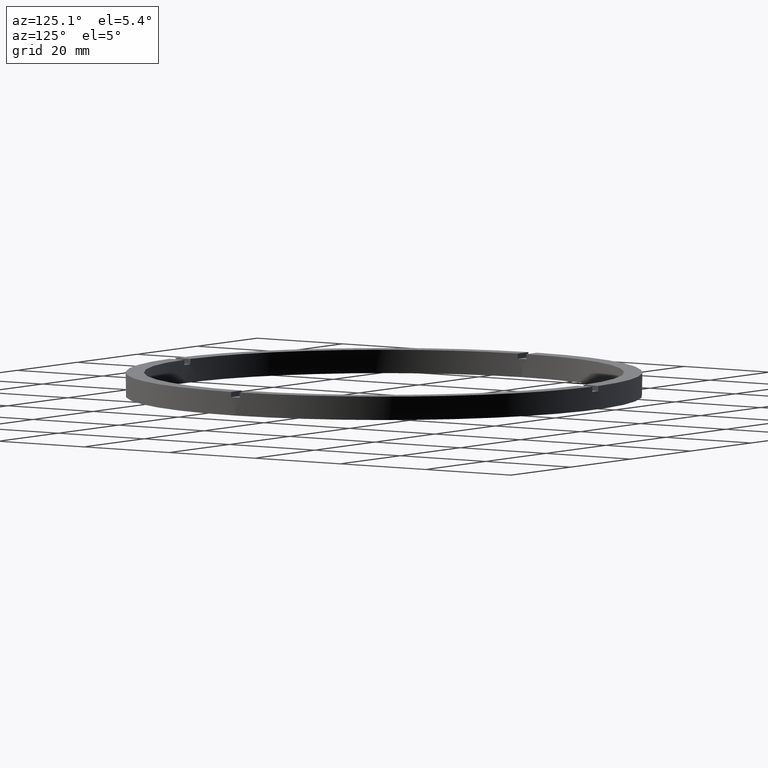
[diagram: clean part render]
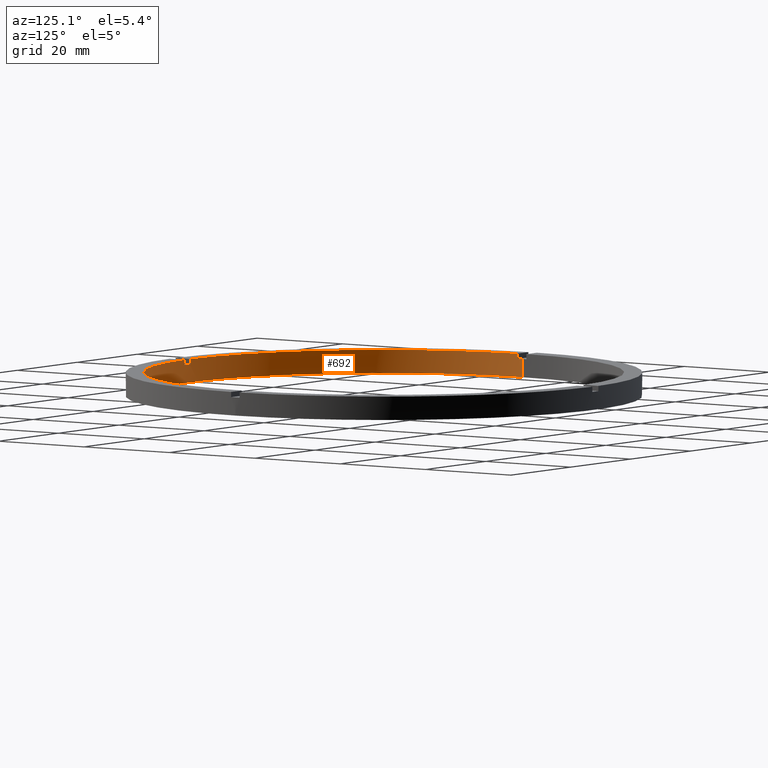
[diagram: same view with one face highlighted and labeled with its STEP entity id]
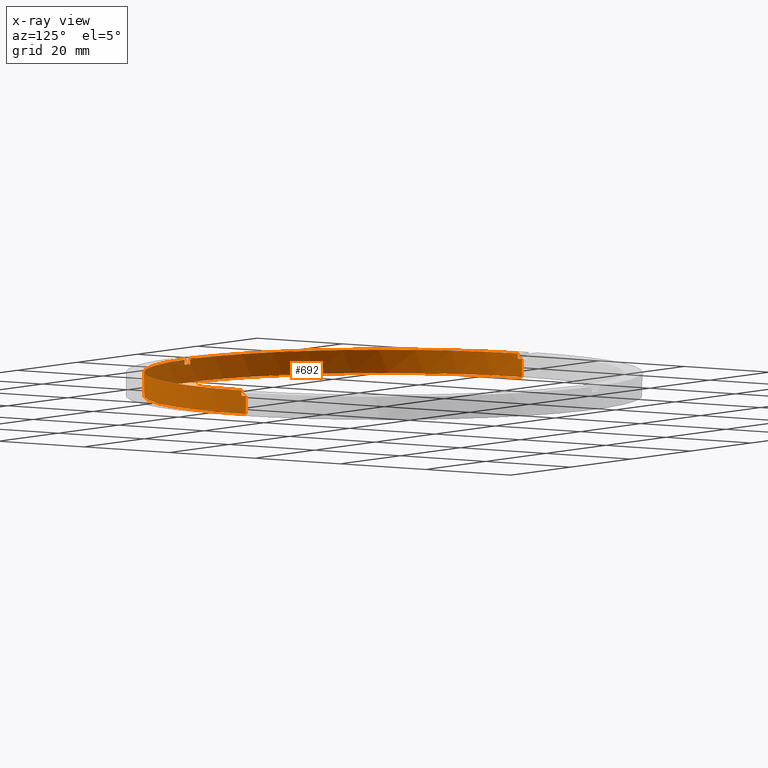
[diagram: x-ray of the same camera — body ghosted, the highlighted face saturated]
A machine part, auxiliary view. The second image highlights one B-rep face of the part: STEP entity #692.
The next image is the same camera in x-ray: the body ghosted, the highlighted face saturated — about 0% of this face is hidden behind the body in this view.
In plain terms, the highlighted cylindrical surface (partial cylindrical patch) has radius 46 mm, axis along (-0, -0, -1).
Its self-contained STEP definition (entity closure, byte-faithful):
#1 = EDGE_CURVE ( 'NONE', #614, #634, #262, .T. ) ;
#6 = ORIENTED_EDGE ( 'NONE', *, *, #430, .T. ) ;
#7 = VERTEX_POINT ( 'NONE', #369 ) ;
#19 = CARTESIAN_POINT ( 'NONE',  ( 46.00000000000000000, 5.633375276077824704E-15, 0.000000000000000000 ) ) ;
#56 = CARTESIAN_POINT ( 'NONE',  ( 45.98912915026767223, -1.000000000000155431, 4.500000000000000000 ) ) ;
#59 = DIRECTION ( 'NONE',  ( 1.000000000000000000, 0.000000000000000000, 0.000000000000000000 ) ) ;
#61 = DIRECTION ( 'NONE',  ( 0.000000000000000000, 0.000000000000000000, 1.000000000000000000 ) ) ;
#63 = CARTESIAN_POINT ( 'NONE',  ( -45.98912915026767223, -1.000000000000030420, 3.499999999999999556 ) ) ;
#71 = DIRECTION ( 'NONE',  ( -1.000000000000000000, 0.000000000000000000, 0.000000000000000000 ) ) ;
#73 = CIRCLE ( 'NONE', #776, 46.00000000000000000 ) ;
#74 = CARTESIAN_POINT ( 'NONE',  ( -46.00000000000000000, 0.000000000000000000, 3.499999999999999556 ) ) ;
#85 = CARTESIAN_POINT ( 'NONE',  ( 0.000000000000000000, 0.000000000000000000, 3.499999999999999556 ) ) ;
#97 = DIRECTION ( 'NONE',  ( 1.000000000000000000, 0.000000000000000000, 0.000000000000000000 ) ) ;
#98 = EDGE_CURVE ( 'NONE', #782, #364, #205, .T. ) ;
#99 = EDGE_CURVE ( 'NONE', #614, #633, #457, .T. ) ;
#113 = DIRECTION ( 'NONE',  ( 1.000000000000000000, 0.000000000000000000, 0.000000000000000000 ) ) ;
#116 = EDGE_CURVE ( 'NONE', #661, #123, #186, .T. ) ;
#123 = VERTEX_POINT ( 'NONE', #626 ) ;
#128 = ORIENTED_EDGE ( 'NONE', *, *, #732, .T. ) ;
#129 = DIRECTION ( 'NONE',  ( 0.000000000000000000, 0.000000000000000000, 1.000000000000000000 ) ) ;
#135 = DIRECTION ( 'NONE',  ( 0.000000000000000000, 0.000000000000000000, 1.000000000000000000 ) ) ;
#138 = CARTESIAN_POINT ( 'NONE',  ( 45.98912915026767223, -1.000000000000155431, 4.500000000000000000 ) ) ;
#151 = EDGE_CURVE ( 'NONE', #7, #631, #453, .T. ) ;
#158 = CARTESIAN_POINT ( 'NONE',  ( 0.000000000000000000, 0.000000000000000000, 4.500000000000000000 ) ) ;
#162 = EDGE_CURVE ( 'NONE', #7, #634, #201, .T. ) ;
#169 = VERTEX_POINT ( 'NONE', #19 ) ;
#170 = ORIENTED_EDGE ( 'NONE', *, *, #474, .T. ) ;
#183 = LINE ( 'NONE', #713, #458 ) ;
#186 = LINE ( 'NONE', #380, #717 ) ;
#195 = DIRECTION ( 'NONE',  ( 1.000000000000000000, 0.000000000000000000, 0.000000000000000000 ) ) ;
#201 = LINE ( 'NONE', #531, #720 ) ;
#203 = VECTOR ( 'NONE', #135, 1000.000000000000000 ) ;
#205 = LINE ( 'NONE', #56, #203 ) ;
#216 = CARTESIAN_POINT ( 'NONE',  ( 46.00000000000000000, 5.633375276077824704E-15, 3.499999999999999556 ) ) ;
#254 = ORIENTED_EDGE ( 'NONE', *, *, #116, .F. ) ;
#262 = CIRCLE ( 'NONE', #749, 46.00000000000000000 ) ;
#282 = AXIS2_PLACEMENT_3D ( 'NONE', #285, #129, #195 ) ;
#285 = CARTESIAN_POINT ( 'NONE',  ( 0.000000000000000000, 0.000000000000000000, 0.000000000000000000 ) ) ;
#290 = ORIENTED_EDGE ( 'NONE', *, *, #151, .T. ) ;
#300 = ORIENTED_EDGE ( 'NONE', *, *, #99, .F. ) ;
#326 = DIRECTION ( 'NONE',  ( 1.000000000000000000, 0.000000000000000000, 0.000000000000000000 ) ) ;
#338 = CARTESIAN_POINT ( 'NONE',  ( 0.9999999999998425704, -45.98912915026767934, 4.500000000000000000 ) ) ;
#358 = CARTESIAN_POINT ( 'NONE',  ( -1.000000000000157430, -45.98912915026767223, 3.499999999999999556 ) ) ;
#361 = CARTESIAN_POINT ( 'NONE',  ( -1.000000000000157430, -45.98912915026767223, 4.500000000000000000 ) ) ;
#364 = VERTEX_POINT ( 'NONE', #138 ) ;
#369 = CARTESIAN_POINT ( 'NONE',  ( -45.98912915026767223, -1.000000000000030420, 4.500000000000000000 ) ) ;
#372 = ORIENTED_EDGE ( 'NONE', *, *, #764, .F. ) ;
#380 = CARTESIAN_POINT ( 'NONE',  ( 0.9999999999998425704, -45.98912915026767934, 4.500000000000000000 ) ) ;
#389 = CARTESIAN_POINT ( 'NONE',  ( -46.00000000000000000, 0.000000000000000000, 4.500000000000000000 ) ) ;
#392 = CARTESIAN_POINT ( 'NONE',  ( 0.000000000000000000, 0.000000000000000000, 4.500000000000000000 ) ) ;
#393 = CARTESIAN_POINT ( 'NONE',  ( 0.000000000000000000, 0.000000000000000000, 3.499999999999999556 ) ) ;
#417 = ORIENTED_EDGE ( 'NONE', *, *, #676, .T. ) ;
#421 = ORIENTED_EDGE ( 'NONE', *, *, #98, .F. ) ;
#430 = EDGE_CURVE ( 'NONE', #638, #169, #183, .T. ) ;
#434 = CIRCLE ( 'NONE', #282, 46.00000000000000000 ) ;
#453 = CIRCLE ( 'NONE', #715, 46.00000000000000000 ) ;
#455 = DIRECTION ( 'NONE',  ( -0.000000000000000000, -0.000000000000000000, -1.000000000000000000 ) ) ;
#457 = LINE ( 'NONE', #389, #728 ) ;
#458 = VECTOR ( 'NONE', #688, 1000.000000000000000 ) ;
#467 = DIRECTION ( 'NONE',  ( 0.000000000000000000, 0.000000000000000000, 1.000000000000000000 ) ) ;
#474 = EDGE_CURVE ( 'NONE', #661, #364, #716, .T. ) ;
#477 = ORIENTED_EDGE ( 'NONE', *, *, #1, .T. ) ;
#483 = CARTESIAN_POINT ( 'NONE',  ( 45.98912915026767223, -1.000000000000155431, 3.499999999999999556 ) ) ;
#487 = DIRECTION ( 'NONE',  ( -0.000000000000000000, 0.000000000000000000, 1.000000000000000000 ) ) ;
#521 = DIRECTION ( 'NONE',  ( -0.000000000000000000, -0.000000000000000000, -1.000000000000000000 ) ) ;
#527 = ORIENTED_EDGE ( 'NONE', *, *, #162, .F. ) ;
#531 = CARTESIAN_POINT ( 'NONE',  ( -45.98912915026767223, -1.000000000000030420, 4.500000000000000000 ) ) ;
#543 = VERTEX_POINT ( 'NONE', #358 ) ;
#551 = AXIS2_PLACEMENT_3D ( 'NONE', #392, #768, #71 ) ;
#556 = DIRECTION ( 'NONE',  ( 0.000000000000000000, 0.000000000000000000, 1.000000000000000000 ) ) ;
#564 = LINE ( 'NONE', #361, #565 ) ;
#565 = VECTOR ( 'NONE', #556, 1000.000000000000000 ) ;
#568 = CYLINDRICAL_SURFACE ( 'NONE', #551, 46.00000000000000000 ) ;
#580 = DIRECTION ( 'NONE',  ( 0.000000000000000000, 0.000000000000000000, 1.000000000000000000 ) ) ;
#585 = EDGE_CURVE ( 'NONE', #633, #169, #434, .T. ) ;
#587 = AXIS2_PLACEMENT_3D ( 'NONE', #600, #735, #592 ) ;
#592 = DIRECTION ( 'NONE',  ( 1.000000000000000000, 0.000000000000000000, 0.000000000000000000 ) ) ;
#600 = CARTESIAN_POINT ( 'NONE',  ( 0.000000000000000000, 0.000000000000000000, 4.500000000000000000 ) ) ;
#610 = CARTESIAN_POINT ( 'NONE',  ( -1.000000000000157430, -45.98912915026767223, 4.500000000000000000 ) ) ;
#614 = VERTEX_POINT ( 'NONE', #74 ) ;
#616 = AXIS2_PLACEMENT_3D ( 'NONE', #752, #580, #59 ) ;
#626 = CARTESIAN_POINT ( 'NONE',  ( 0.9999999999998425704, -45.98912915026767934, 3.499999999999999556 ) ) ;
#631 = VERTEX_POINT ( 'NONE', #610 ) ;
#633 = VERTEX_POINT ( 'NONE', #744 ) ;
#634 = VERTEX_POINT ( 'NONE', #63 ) ;
#638 = VERTEX_POINT ( 'NONE', #216 ) ;
#648 = DIRECTION ( 'NONE',  ( -0.000000000000000000, -0.000000000000000000, -1.000000000000000000 ) ) ;
#661 = VERTEX_POINT ( 'NONE', #338 ) ;
#676 = EDGE_CURVE ( 'NONE', #782, #638, #699, .T. ) ;
#688 = DIRECTION ( 'NONE',  ( -0.000000000000000000, -0.000000000000000000, -1.000000000000000000 ) ) ;
#692 = ADVANCED_FACE ( 'NONE', ( #709 ), #568, .F. ) ;
#699 = CIRCLE ( 'NONE', #616, 46.00000000000000000 ) ;
#709 = FACE_OUTER_BOUND ( 'NONE', #748, .T. ) ;
#713 = CARTESIAN_POINT ( 'NONE',  ( 46.00000000000000000, 5.633375276077824704E-15, 4.500000000000000000 ) ) ;
#715 = AXIS2_PLACEMENT_3D ( 'NONE', #158, #467, #113 ) ;
#716 = CIRCLE ( 'NONE', #587, 46.00000000000000000 ) ;
#717 = VECTOR ( 'NONE', #455, 1000.000000000000000 ) ;
#720 = VECTOR ( 'NONE', #648, 1000.000000000000000 ) ;
#728 = VECTOR ( 'NONE', #521, 1000.000000000000000 ) ;
#732 = EDGE_CURVE ( 'NONE', #543, #123, #73, .T. ) ;
#735 = DIRECTION ( 'NONE',  ( 0.000000000000000000, 0.000000000000000000, 1.000000000000000000 ) ) ;
#744 = CARTESIAN_POINT ( 'NONE',  ( -46.00000000000000000, 0.000000000000000000, 0.000000000000000000 ) ) ;
#748 = EDGE_LOOP ( 'NONE', ( #417, #6, #755, #300, #477, #527, #290, #372, #128, #254, #170, #421 ) ) ;
#749 = AXIS2_PLACEMENT_3D ( 'NONE', #393, #61, #97 ) ;
#752 = CARTESIAN_POINT ( 'NONE',  ( 0.000000000000000000, 0.000000000000000000, 3.499999999999999556 ) ) ;
#755 = ORIENTED_EDGE ( 'NONE', *, *, #585, .F. ) ;
#764 = EDGE_CURVE ( 'NONE', #543, #631, #564, .T. ) ;
#768 = DIRECTION ( 'NONE',  ( -0.000000000000000000, -0.000000000000000000, -1.000000000000000000 ) ) ;
#776 = AXIS2_PLACEMENT_3D ( 'NONE', #85, #487, #326 ) ;
#782 = VERTEX_POINT ( 'NONE', #483 ) ;